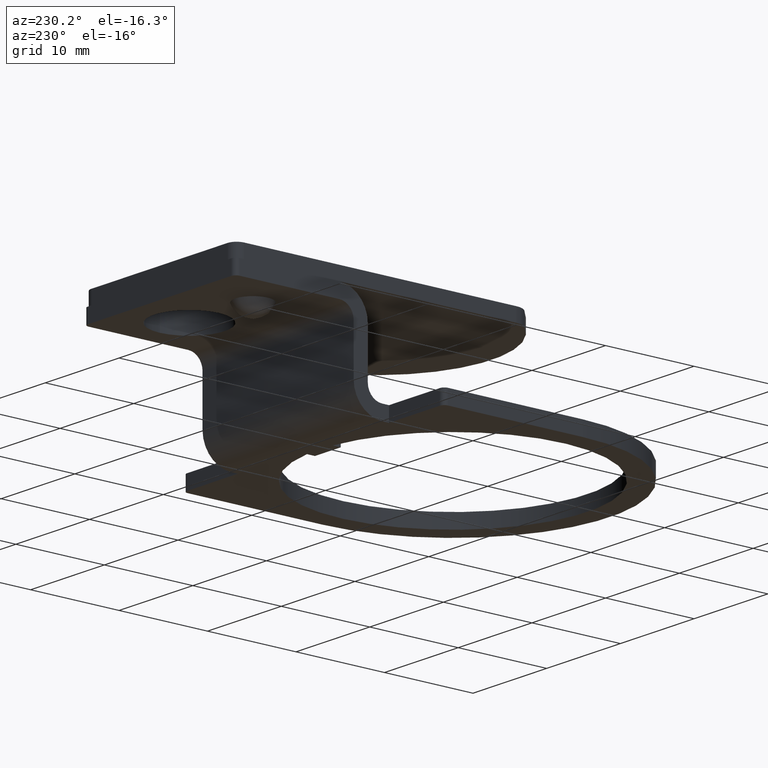
[diagram: clean part render]
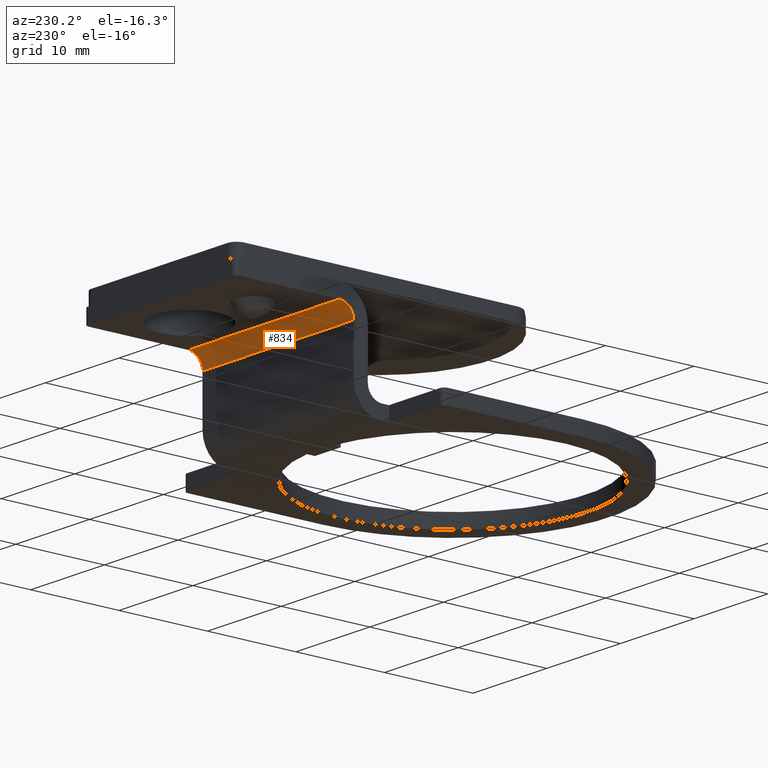
[diagram: same view with one face highlighted and labeled with its STEP entity id]
A machine part, auxiliary view. The second image highlights one B-rep face of the part: STEP entity #834.
In plain terms, the highlighted cylindrical surface (edge-blend (fillet) strip) has radius 1.6 mm, axis along (-1, 0, 0).
Its self-contained STEP definition (entity closure, byte-faithful):
#334=CARTESIAN_POINT('',(13.405585628369575,1.058010052756922,8.550000000000001));
#335=VERTEX_POINT('',#334);
#342=CARTESIAN_POINT('',(13.405585628369575,2.658010052756930,10.150000000000002));
#343=VERTEX_POINT('',#342);
#344=CARTESIAN_POINT('',(13.405585628369575,2.658010052756922,8.550000000000003));
#345=DIRECTION('',(-1.0,0.0,0.0));
#346=DIRECTION('',(0.0,-1.0,0.0));
#347=AXIS2_PLACEMENT_3D('',#344,#345,#346);
#348=CIRCLE('',#347,1.600000000000000);
#349=EDGE_CURVE('',#335,#343,#348,.T.);
#733=CARTESIAN_POINT('',(-7.094414371630422,2.658010052756923,10.150000000000002));
#734=VERTEX_POINT('',#733);
#735=CARTESIAN_POINT('',(-7.094414371630422,2.658010052756923,10.150000000000002));
#736=DIRECTION('',(1.0,0.0,0.0));
#737=VECTOR('',#736,20.499999999999996);
#738=LINE('',#735,#737);
#739=EDGE_CURVE('',#734,#343,#738,.T.);
#763=CARTESIAN_POINT('',(-7.094414371630422,1.058010052756922,8.550000000000001));
#764=VERTEX_POINT('',#763);
#765=CARTESIAN_POINT('',(-7.094414371630422,2.658010052756922,8.550000000000003));
#766=DIRECTION('',(-1.0,0.0,0.0));
#767=DIRECTION('',(0.0,-1.0,0.0));
#768=AXIS2_PLACEMENT_3D('',#765,#766,#767);
#769=CIRCLE('',#768,1.600000000000000);
#770=EDGE_CURVE('',#764,#734,#769,.T.);
#818=CARTESIAN_POINT('',(3.155585628369577,2.658010052756922,8.550000000000003));
#819=DIRECTION('',(-1.0,0.0,0.0));
#820=DIRECTION('',(0.0,-1.0,0.0));
#821=AXIS2_PLACEMENT_3D('',#818,#819,#820);
#822=CYLINDRICAL_SURFACE('',#821,1.600000000000000);
#823=ORIENTED_EDGE('',*,*,#739,.T.);
#824=ORIENTED_EDGE('',*,*,#349,.F.);
#825=CARTESIAN_POINT('',(-7.094414371630422,1.058010052756922,8.550000000000001));
#826=DIRECTION('',(1.0,0.0,0.0));
#827=VECTOR('',#826,20.499999999999996);
#828=LINE('',#825,#827);
#829=EDGE_CURVE('',#764,#335,#828,.T.);
#830=ORIENTED_EDGE('',*,*,#829,.F.);
#831=ORIENTED_EDGE('',*,*,#770,.T.);
#832=EDGE_LOOP('',(#823,#824,#830,#831));
#833=FACE_OUTER_BOUND('',#832,.T.);
#834=ADVANCED_FACE('',(#833),#822,.F.);